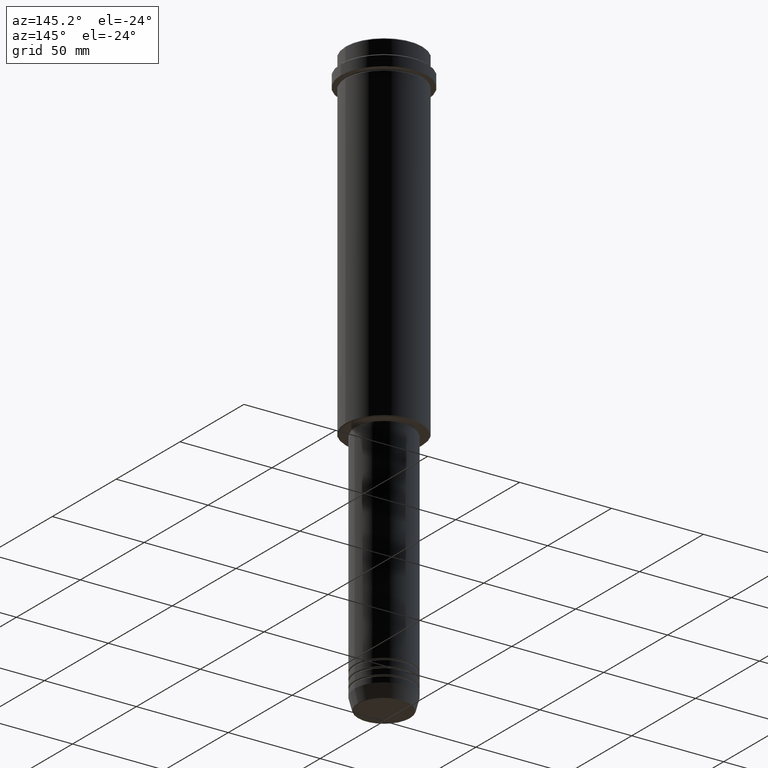
[diagram: clean part render]
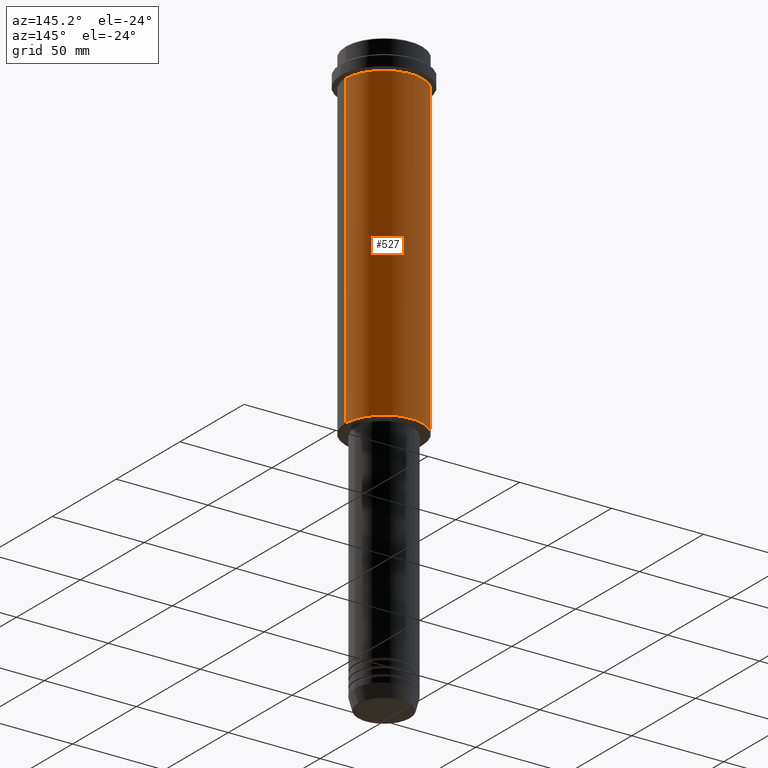
[diagram: same view with one face highlighted and labeled with its STEP entity id]
A machine part, auxiliary view. The second image highlights one B-rep face of the part: STEP entity #527.
In plain terms, the highlighted cylindrical surface (partial cylindrical patch) has radius 21 mm, axis along (-0, -0, 1).
Its self-contained STEP definition (entity closure, byte-faithful):
#21 = CARTESIAN_POINT ( 'NONE',  ( 0.000000000000000000, 0.000000000000000000, -16.00000000000000355 ) ) ;
#28 = CYLINDRICAL_SURFACE ( 'NONE', #886, 20.99999999999999645 ) ;
#88 = CIRCLE ( 'NONE', #943, 20.99999999999999645 ) ;
#110 = VECTOR ( 'NONE', #213, 1000.000000000000000 ) ;
#213 = DIRECTION ( 'NONE',  ( -0.000000000000000000, -0.000000000000000000, 1.000000000000000000 ) ) ;
#230 = VERTEX_POINT ( 'NONE', #1356 ) ;
#276 = DIRECTION ( 'NONE',  ( -0.000000000000000000, -0.000000000000000000, 1.000000000000000000 ) ) ;
#413 = CARTESIAN_POINT ( 'NONE',  ( 0.000000000000000000, 0.000000000000000000, -184.5000000000000284 ) ) ;
#433 = VECTOR ( 'NONE', #1342, 1000.000000000000000 ) ;
#462 = DIRECTION ( 'NONE',  ( 1.000000000000000000, 0.000000000000000000, 0.000000000000000000 ) ) ;
#476 = AXIS2_PLACEMENT_3D ( 'NONE', #21, #276, #1338 ) ;
#519 = CIRCLE ( 'NONE', #476, 20.99999999999999645 ) ;
#523 = DIRECTION ( 'NONE',  ( -0.000000000000000000, -0.000000000000000000, 1.000000000000000000 ) ) ;
#527 = ADVANCED_FACE ( 'NONE', ( #1124 ), #28, .T. ) ;
#563 = EDGE_CURVE ( 'NONE', #948, #230, #519, .T. ) ;
#568 = ORIENTED_EDGE ( 'NONE', *, *, #1077, .T. ) ;
#590 = VERTEX_POINT ( 'NONE', #679 ) ;
#641 = LINE ( 'NONE', #861, #110 ) ;
#679 = CARTESIAN_POINT ( 'NONE',  ( -20.99999999999999645, 2.571758278209441267E-15, -184.5000000000000284 ) ) ;
#733 = EDGE_CURVE ( 'NONE', #1039, #590, #88, .T. ) ;
#801 = DIRECTION ( 'NONE',  ( -0.000000000000000000, -0.000000000000000000, 1.000000000000000000 ) ) ;
#861 = CARTESIAN_POINT ( 'NONE',  ( 20.99999999999999645, 0.000000000000000000, 0.000000000000000000 ) ) ;
#874 = ORIENTED_EDGE ( 'NONE', *, *, #733, .T. ) ;
#886 = AXIS2_PLACEMENT_3D ( 'NONE', #1250, #801, #462 ) ;
#902 = CARTESIAN_POINT ( 'NONE',  ( -20.99999999999999645, 2.571758278209441267E-15, 0.000000000000000000 ) ) ;
#926 = ORIENTED_EDGE ( 'NONE', *, *, #1271, .F. ) ;
#943 = AXIS2_PLACEMENT_3D ( 'NONE', #413, #523, #1264 ) ;
#948 = VERTEX_POINT ( 'NONE', #1027 ) ;
#956 = EDGE_LOOP ( 'NONE', ( #874, #568, #1251, #926 ) ) ;
#1027 = CARTESIAN_POINT ( 'NONE',  ( 20.99999999999999645, 0.000000000000000000, -16.00000000000000355 ) ) ;
#1036 = LINE ( 'NONE', #902, #433 ) ;
#1039 = VERTEX_POINT ( 'NONE', #1360 ) ;
#1077 = EDGE_CURVE ( 'NONE', #590, #230, #1036, .T. ) ;
#1124 = FACE_OUTER_BOUND ( 'NONE', #956, .T. ) ;
#1250 = CARTESIAN_POINT ( 'NONE',  ( 0.000000000000000000, 0.000000000000000000, 0.000000000000000000 ) ) ;
#1251 = ORIENTED_EDGE ( 'NONE', *, *, #563, .F. ) ;
#1264 = DIRECTION ( 'NONE',  ( -1.000000000000000000, 0.000000000000000000, 0.000000000000000000 ) ) ;
#1271 = EDGE_CURVE ( 'NONE', #1039, #948, #641, .T. ) ;
#1338 = DIRECTION ( 'NONE',  ( 1.000000000000000000, 0.000000000000000000, 0.000000000000000000 ) ) ;
#1342 = DIRECTION ( 'NONE',  ( -0.000000000000000000, -0.000000000000000000, 1.000000000000000000 ) ) ;
#1356 = CARTESIAN_POINT ( 'NONE',  ( -20.99999999999999645, 2.571758278209441267E-15, -16.00000000000000355 ) ) ;
#1360 = CARTESIAN_POINT ( 'NONE',  ( 20.99999999999999645, 0.000000000000000000, -184.5000000000000284 ) ) ;